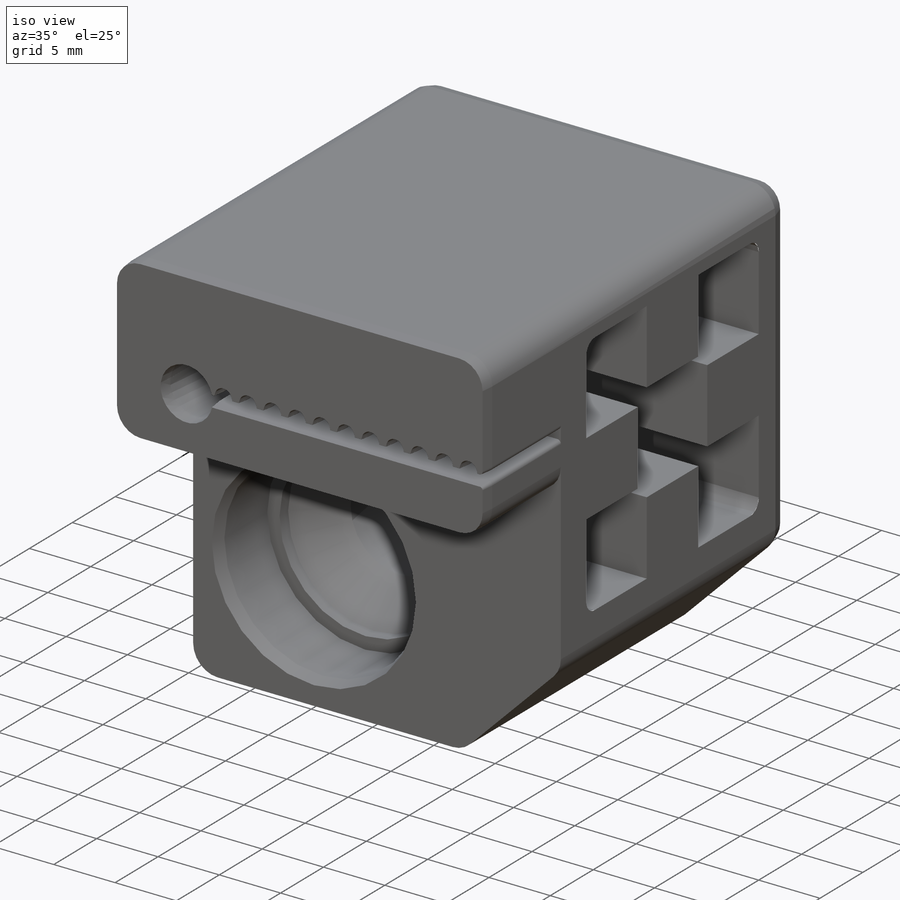
[diagram: iso view]
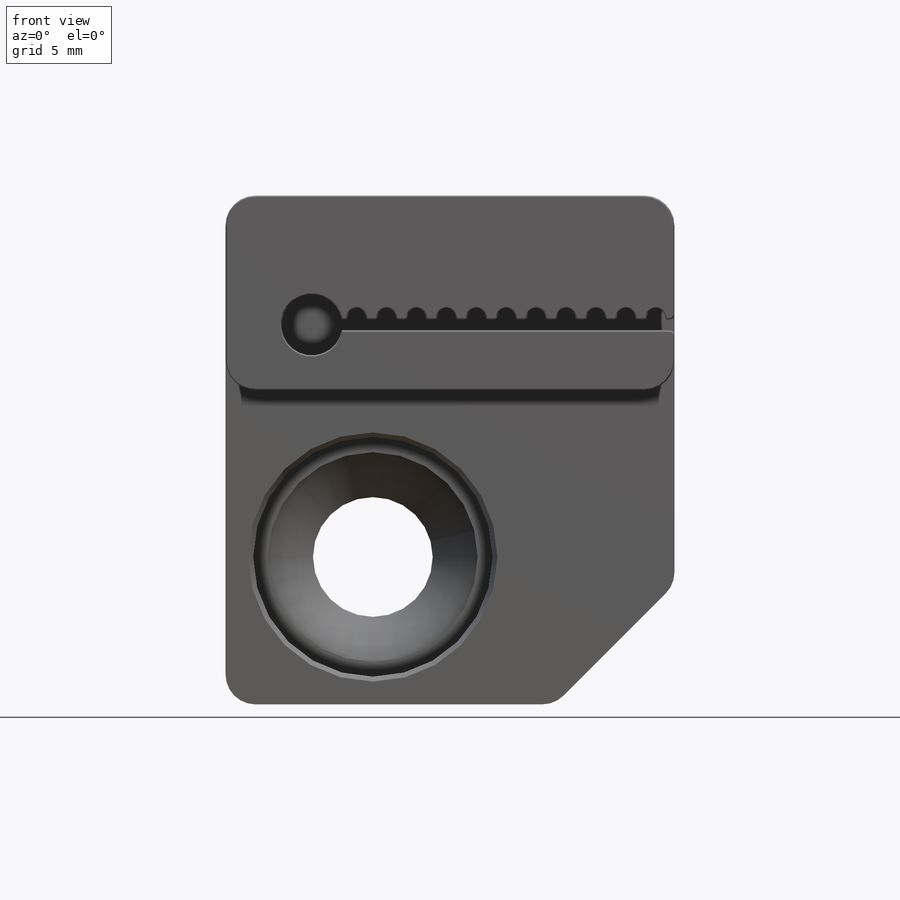
[diagram: front view]
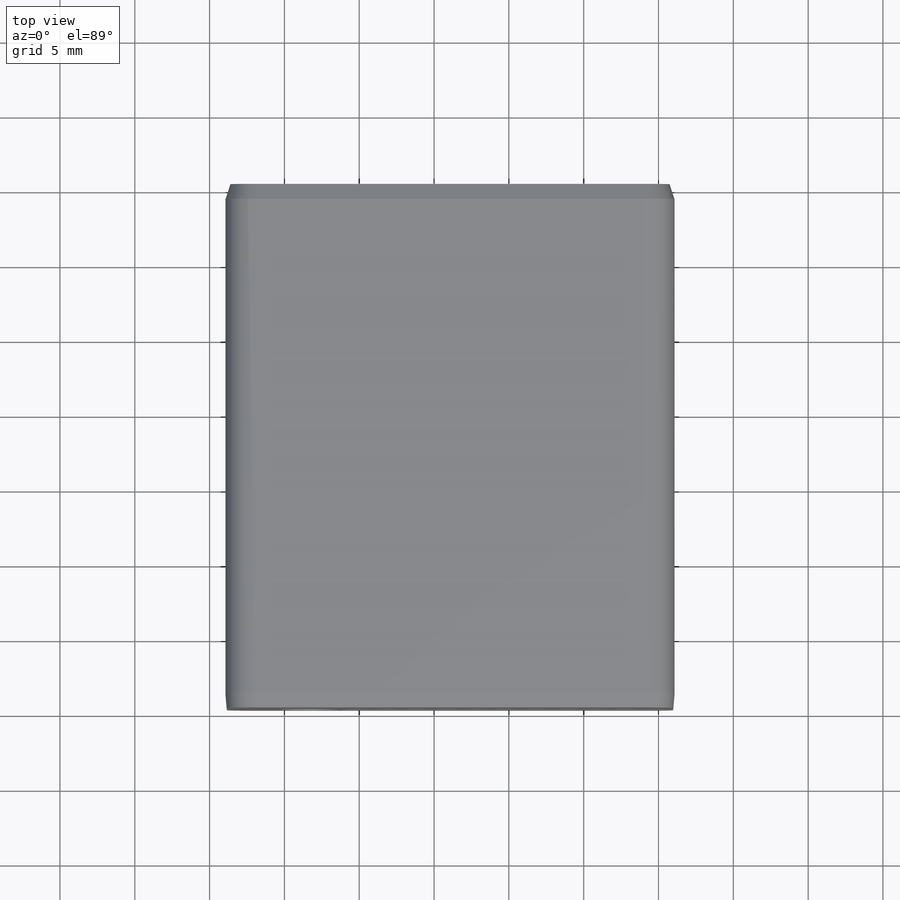
[diagram: top view]
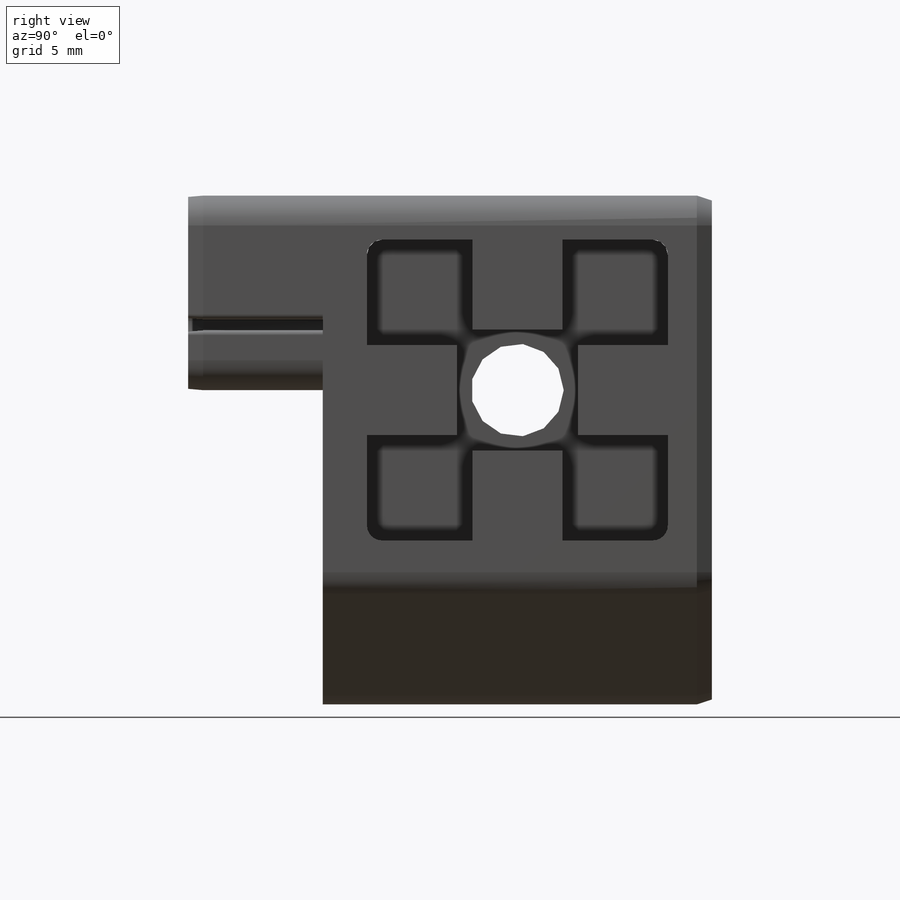
[diagram: right view]
SOLIDWORKS PART (.sldprt)
format: sldprt  version: not decoded by parser v0  size: 672,256 bytes
history: native  units: mm
features: sketch x7, cut_extrude x5, chamfer x5, plane x4, extrude x2, material x1, fillet x1, mirror x1 (+9 scaffold rows collapsed)
feature tree (35):
  scaffold x9  (default folders/planes/origin — collapsed)
  material  "Материал <не указан>"
  plane  "Спереди"
  plane  "Сверху"
  plane  "Справа"
  sketch  "Sketch1"  dims[D1=8.0mm D3=16.0mm D2=135.0deg D4=26.0mm D5=30.0mm D6=22.0mm]
  extrude  "Extrude1"  Depth=26mm
  sketch  "Sketch2"  dims[c1.D2=1.0mm c1.D4=6.2mm c1.D7=1.0mm c1.D1=20.1mm c1.D3=6.0mm c2.D4=2.95mm c2.D5=6.0mm c2.D6=4.0]
  cut_extrude  "Extrude3"  Depth=12mm
  cut_extrude  "Extrude4"  [1 undecoded]
  sketch  "Sketch"
  sketch  "Sketch3"  dims[D1=10.2mm]
  cut_extrude  "Extrude5"  Depth=12mm
  fillet  "Fillet1"  Radius=2mm
  cut_extrude  "Extrude7"  [1 undecoded]
  sketch  "Sketch"  dims[D1=6.0mm]
  sketch  "Sketch5"  dims[D1=14.0mm]
  cut_extrude  "Extrude8"  Depth=1mm
  plane  "Plane1"
  mirror  "Mirror1"
  chamfer  "Chamfer1"  Distance=2mm
  chamfer  "Chamfer2"  Distance=3mm
  chamfer  "Chamfer3"  Distance=1mm
  chamfer  "Chamfer4"  Distance=1mm
  sketch  "Sketch6"  dims[c1.D2=2.0mm c1.D3=13.0mm c1.D1=0.0mm c2.D3=0.05mm]
  extrude  "Extrude9"  Depth=9mm
  chamfer  "Chamfer5"  Distance=1mm
decode coverage: 17 of 21 modeling features carry decoded parameters
note: 2 parameter values undecoded
note: suppression state not decoded; provenance and decode notes live in map.json
